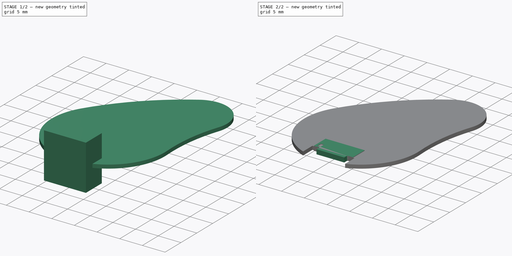
[diagram: build sequence overview — one tinted view per stage of 2, left to right]
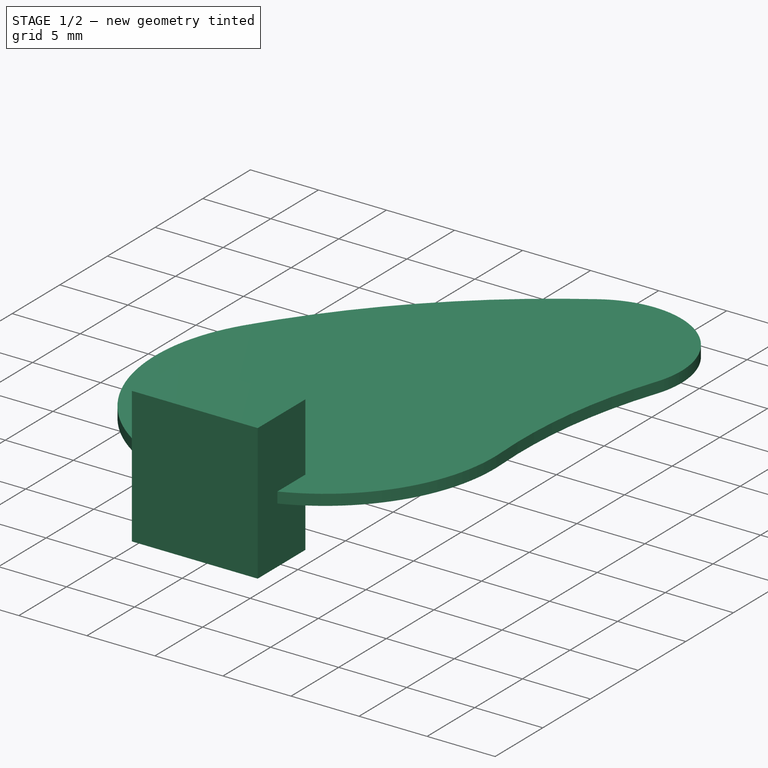
[diagram: stage 1 of 2 — iso view after this stage's code; geometry added in this stage tinted green]
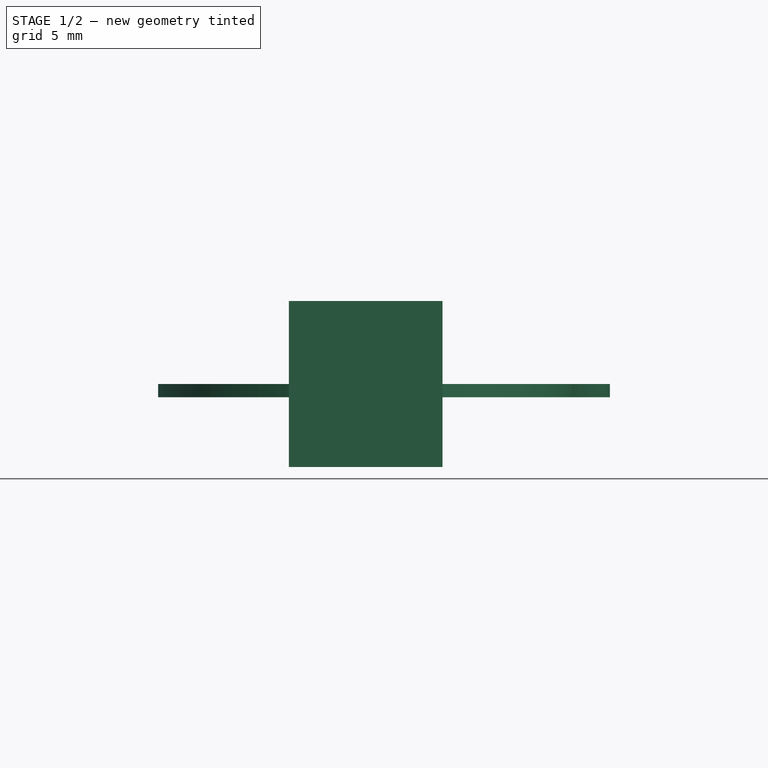
[diagram: stage 1 of 2 — front view after this stage's code; geometry added in this stage tinted green]
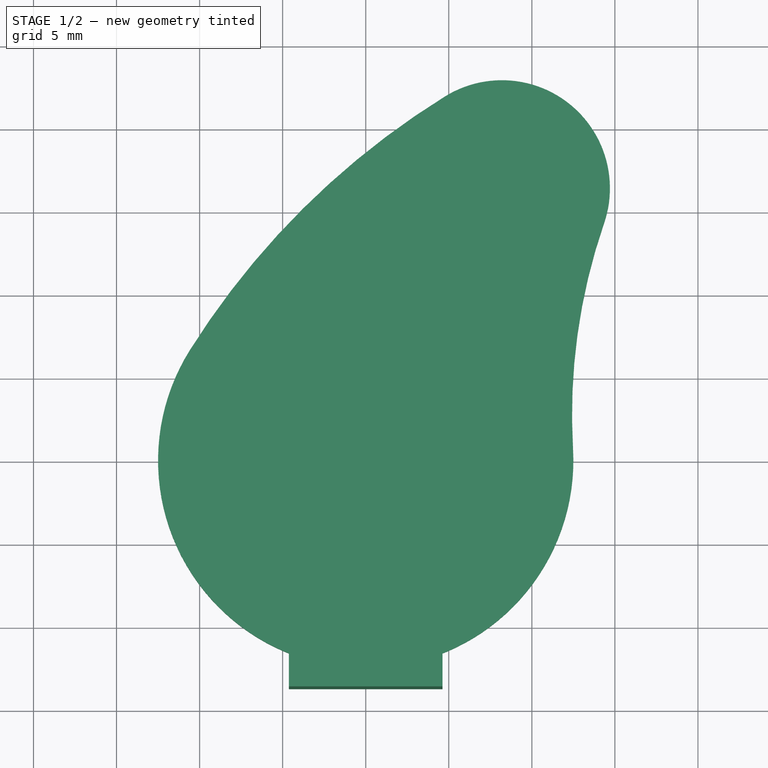
[diagram: stage 1 of 2 — top view after this stage's code; geometry added in this stage tinted green]
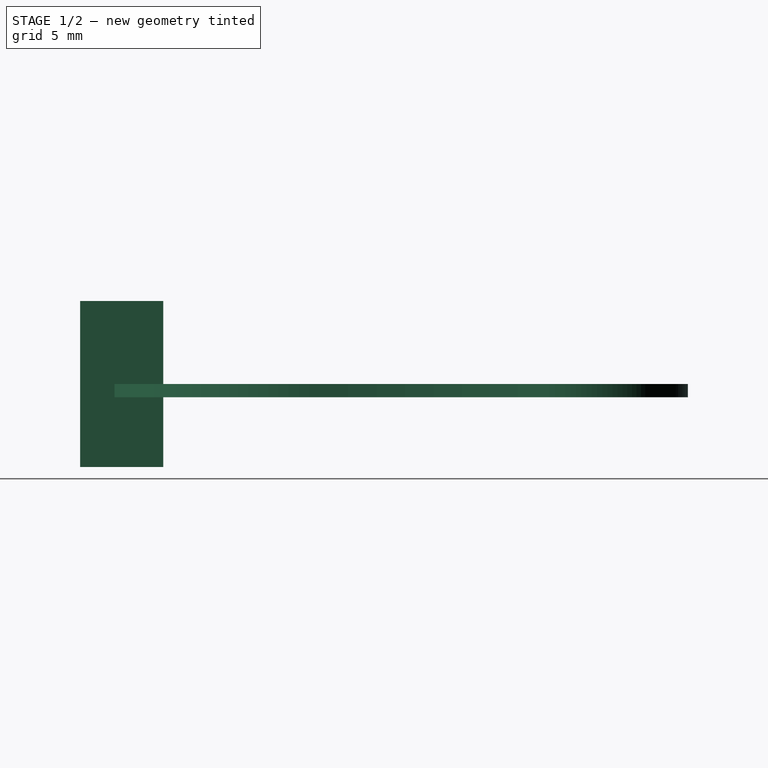
[diagram: stage 1 of 2 — right view after this stage's code; geometry added in this stage tinted green]
FCSTD DOCUMENT  (FreeCAD 0.16R6712 (Git))
Label: edges_placa
License: All rights reserved
LicenseURL: http://en.wikipedia.org/wiki/All_rights_reserved
objects: Part::Feature×3, Sketcher::SketchObject×2, PartDesign::Pad×2, Part::Cut×1, Part::MultiFuse×1
note: 11 computed .brp shape members not serialized (recipe doc carries the construction recipe); baked Part::Feature solids carry a one-line shape summary decoded from their .brp

FEATURE [Sketcher::SketchObject] Sketch
  sketch-geometry (4):
    g0: ArcOfCircle CenterX=47.75 CenterY=2.77646 CenterZ=0 NormalX=0 NormalY=0 NormalZ=1 Radius=35.3307 StartAngle=2.80986 EndAngle=3.19967
    g1: ArcOfCircle CenterX=29.9974 CenterY=-18.7977 CenterZ=0 NormalX=0 NormalY=0 NormalZ=1 Radius=47.9005 StartAngle=2.12528 EndAngle=2.58181
    g2: ArcOfCircle CenterX=0 CenterY=0 CenterZ=0 NormalX=0 NormalY=0 NormalZ=1 Radius=12.5 StartAngle=2.58181 EndAngle=6.34127
    g3: ArcOfCircle CenterX=8.2 CenterY=16.4 CenterZ=0 NormalX=0 NormalY=0 NormalZ=1 Radius=6.5 StartAngle=5.95145 EndAngle=8.40846
  constraints (15):
    c: Coincident(g2,g0)
    c: Coincident(g2,g1)
    c: Tangent(g2,g1)
    c: Tangent(g2,g0)
    c: Coincident(g3,g1)
    c: Coincident(g3,g0)
    c: Radius(g2) = 12.5
    c: Radius(g3) = 6.5
    c: Tangent(g0,g3)
    c: Tangent(g1,g3)
    c: PointOnObject(g2,g-2)
    c: PointOnObject(g2,g-1)
    c: DistanceX(g3) = 8.2
    c: DistanceY(g-1,g3) = 16.4
    c: DistanceX(g0) = 47.75
FEATURE [Part::Feature] Part__Feature  label="qfp64_10x10_p05"
  Placement = pos=(0,0,0) rot=(0,0,1;0.785398rad)
  shape: bbox 14.14 x 14.14 x 1.304 mm, 1007 faces (baked)
FEATURE [Part::Feature] Part__Feature001  label="SOLID"
  Placement = pos=(0,-12,0) rot=(0,0,1;0rad)
  shape: bbox 9.212 x 12.05 x 3.852 mm, 648 faces (baked)
FEATURE [PartDesign::Pad] Pad
  Length = 0.8
  Length2 = 100
  Reversed = true
  Sketch = -> Sketch
  Type = 0
FEATURE [Part::Feature] Part__Feature002  label="Pad001"
  Placement = pos=(0,-12,-0.9) rot=(1,0,0;1.5708rad)
  shape: bbox 8.6 x 4.64 x 1 mm, 16 faces (baked)
FEATURE [Sketcher::SketchObject] Sketch001
  sketch-geometry (4):
    g0: LineSegment StartX=-4.625 StartY=-13.68 StartZ=0 EndX=4.625 EndY=-13.68 EndZ=0
    g1: LineSegment StartX=4.625 StartY=-13.68 StartZ=0 EndX=4.625 EndY=-8.68 EndZ=0
    g2: LineSegment StartX=4.625 StartY=-8.68 StartZ=0 EndX=-4.625 EndY=-8.68 EndZ=0
    g3: LineSegment StartX=-4.625 StartY=-8.68 StartZ=0 EndX=-4.625 EndY=-13.68 EndZ=0
  constraints (12):
    c: Coincident(g0,g1)
    c: Coincident(g1,g2)
    c: Coincident(g2,g3)
    c: Coincident(g3,g0)
    c: Horizontal(g0)
    c: Horizontal(g2)
    c: Vertical(g1)
    c: Vertical(g3)
    c: Symmetric(g0,g0,g-2)
    c: DistanceX(g2,g2) = 9.25
    c: DistanceY(g2) = -8.68
    c: DistanceY(g1,g1) = 5
FEATURE [PartDesign::Pad] Pad001  label="Pad002"
  Length = 10
  Length2 = 100
  Midplane = true
  Sketch = -> Sketch001
  Type = 0
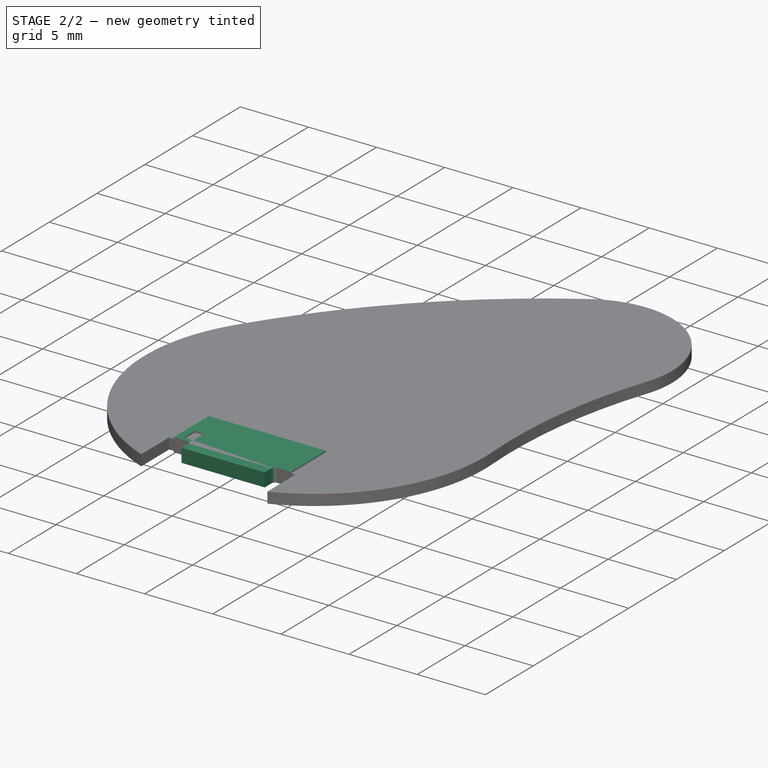
[diagram: stage 2 of 2 — iso view after this stage's code; geometry added in this stage tinted green]
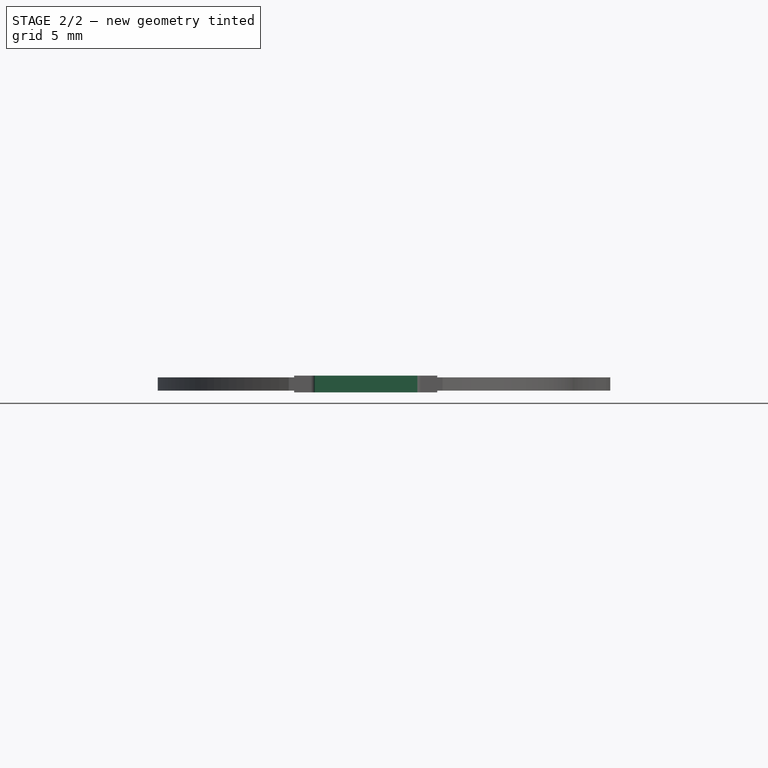
[diagram: stage 2 of 2 — front view after this stage's code; geometry added in this stage tinted green]
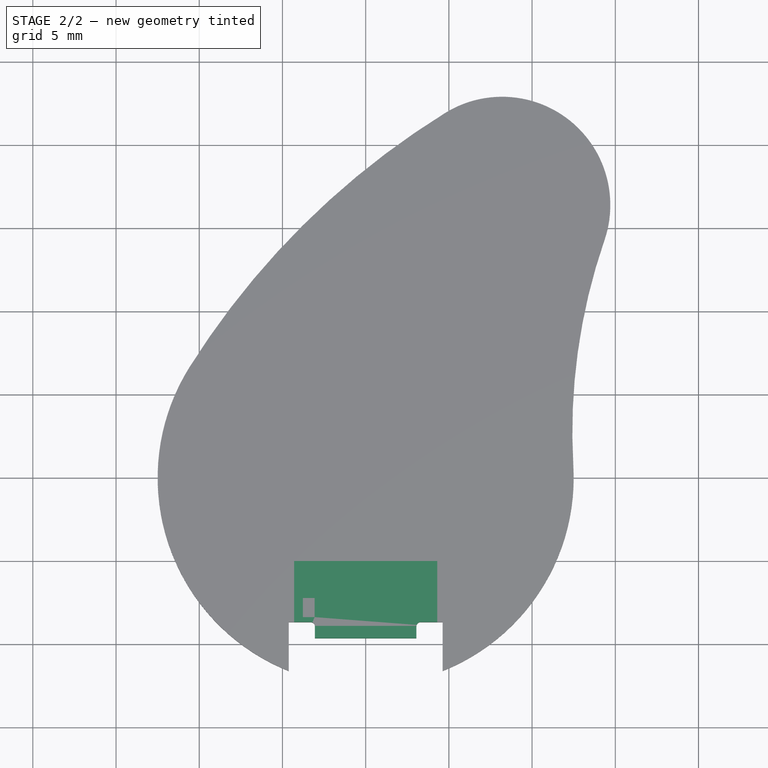
[diagram: stage 2 of 2 — top view after this stage's code; geometry added in this stage tinted green]
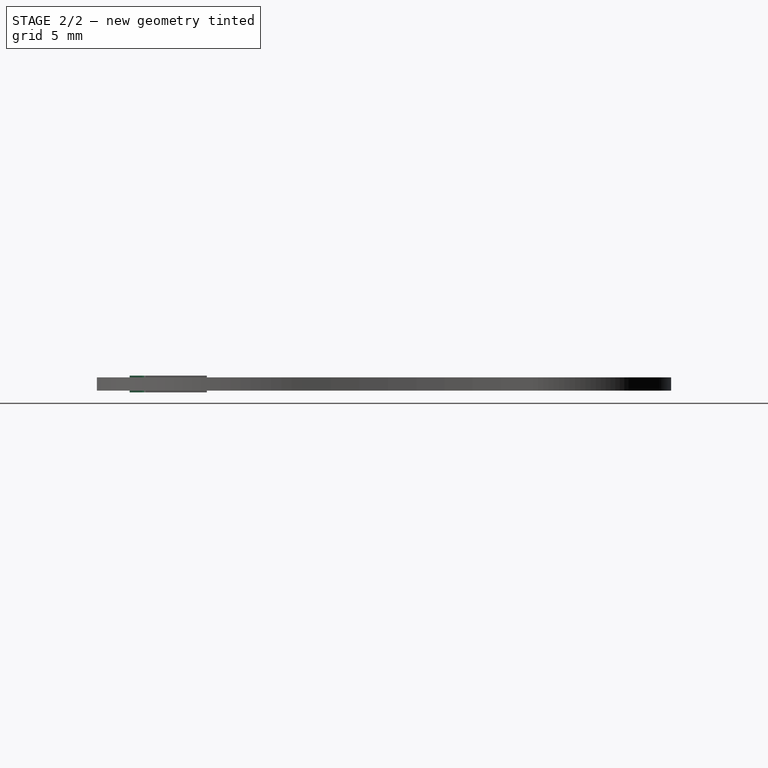
[diagram: stage 2 of 2 — right view after this stage's code; geometry added in this stage tinted green]
FEATURE [Part::Cut] Cut
  Base = -> Pad
  Tool = -> Pad001
FEATURE [Part::MultiFuse] Fusion
  Shapes = -> [Cut,Part__Feature002]
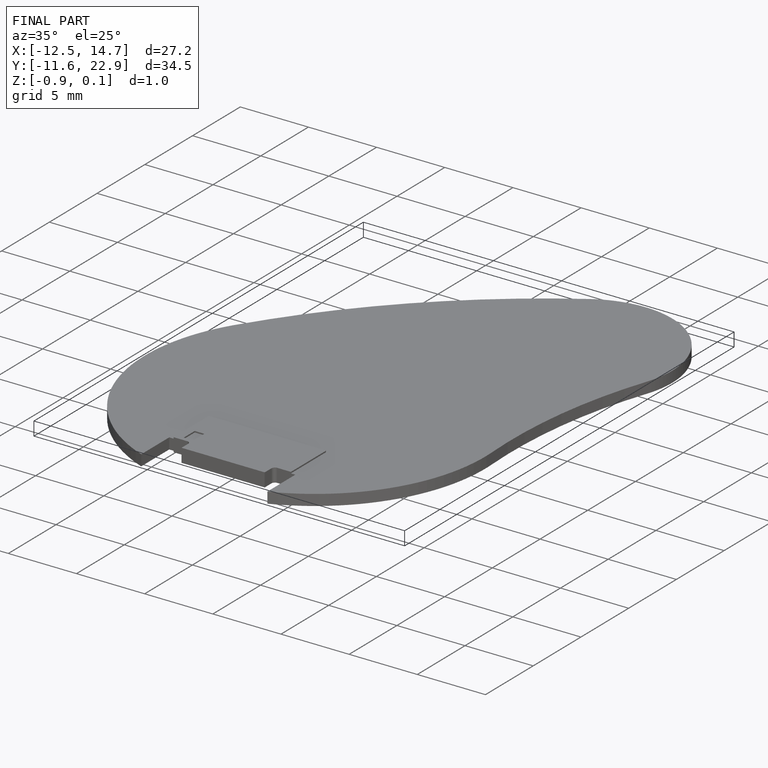
[diagram: finished part — iso view with bounding-box wireframe]
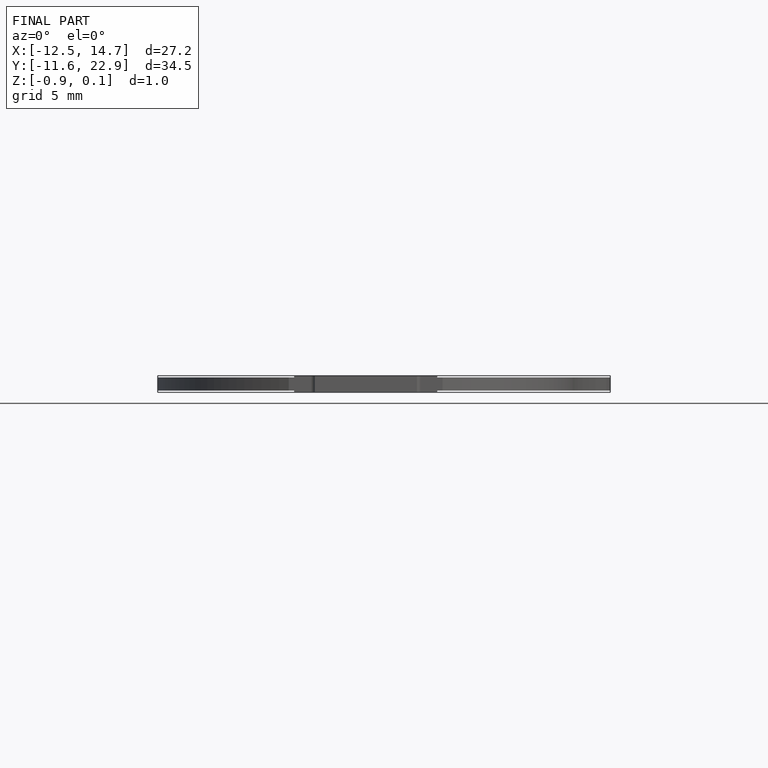
[diagram: finished part — front view with bounding-box wireframe]
